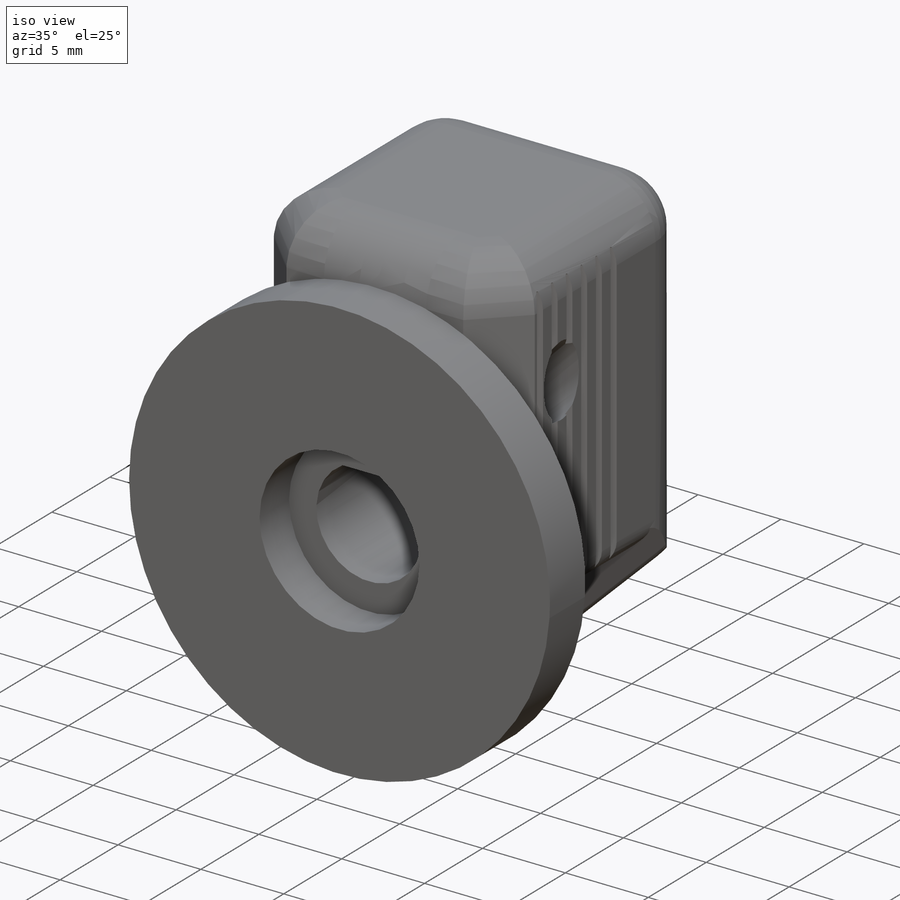
[diagram: iso view]
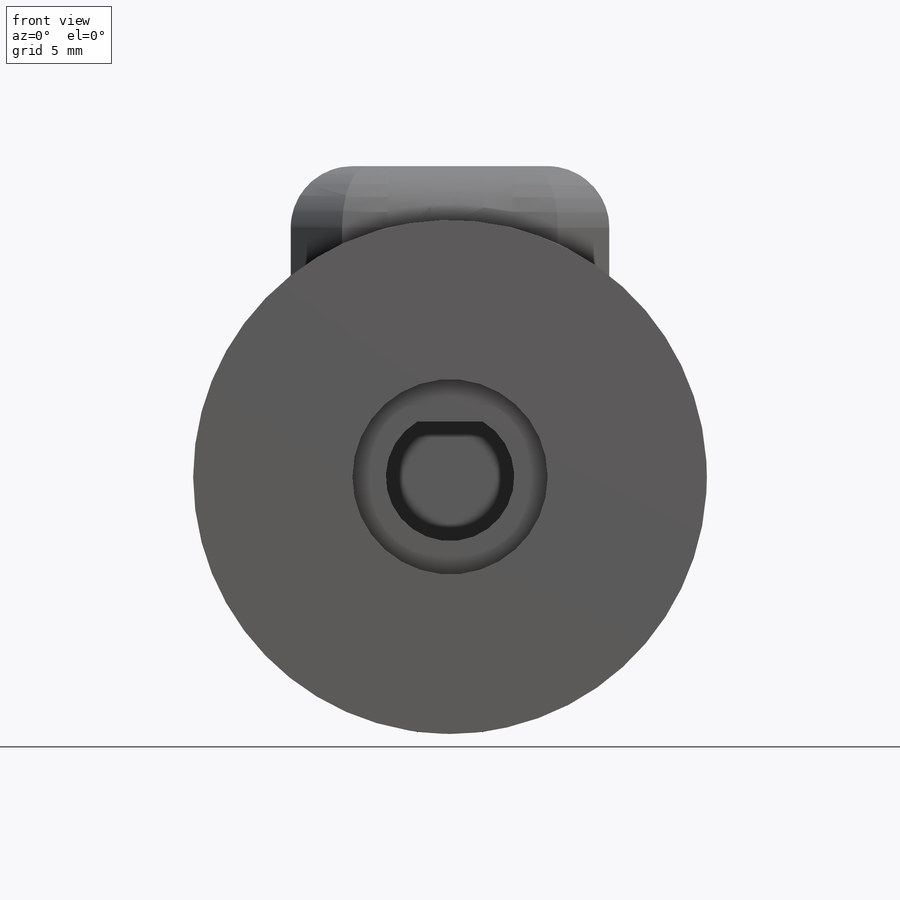
[diagram: front view]
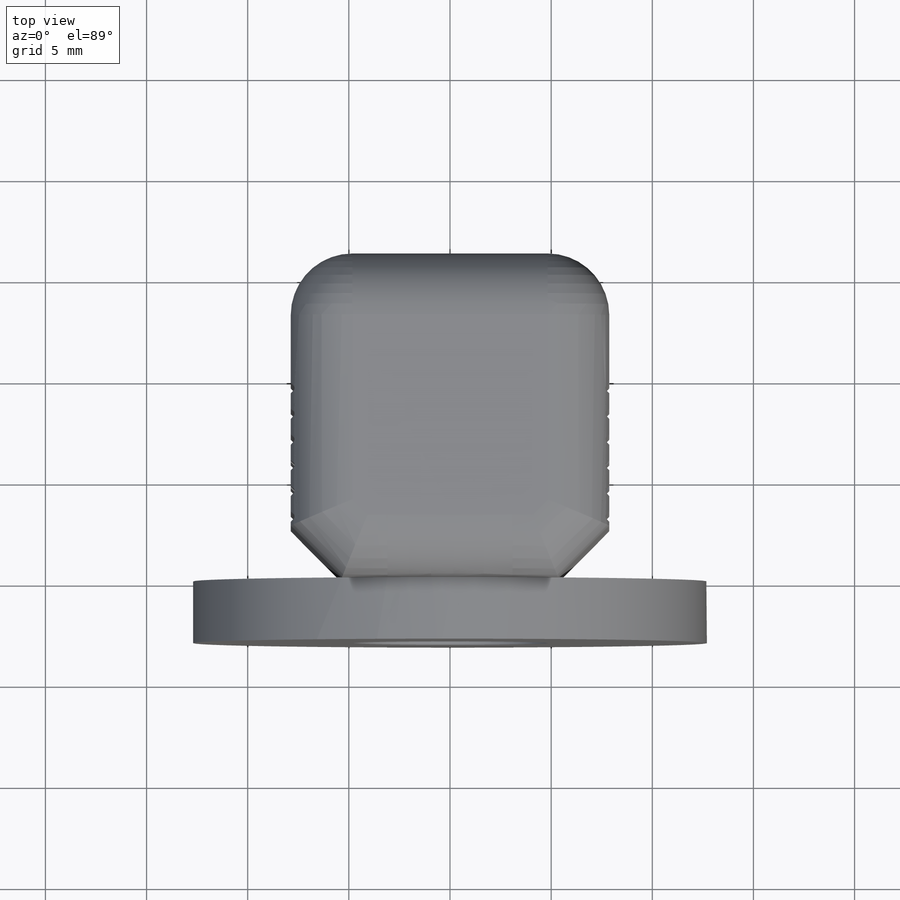
[diagram: top view]
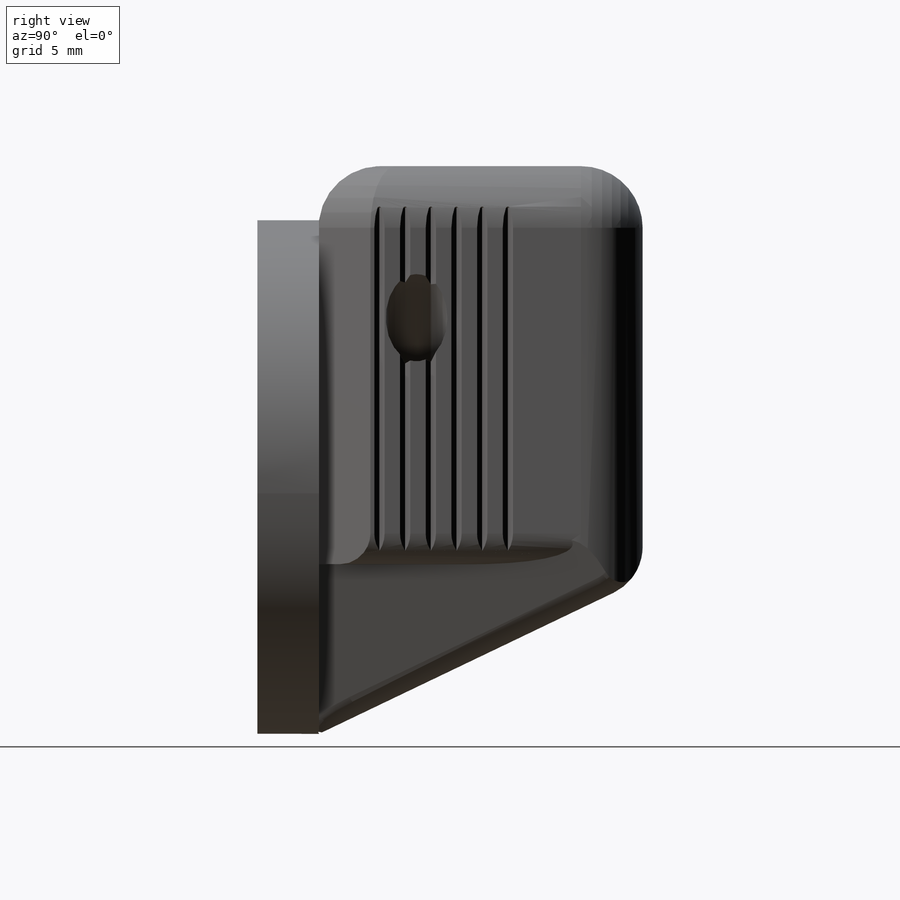
[diagram: right view]
SOLIDWORKS PART (.sldprt)
format: sldprt  version: not decoded by parser v0  size: 752,640 bytes
history: native  units: mm
features: sketch x17, cut_extrude x14, fillet x4, extrude x3, plane x2, mirror x2, material x1, pattern_linear x1 (+11 scaffold rows collapsed)
feature tree (55):
  scaffold x11  (default folders/planes/origin — collapsed)
  material  "PMMA"
  sketch  "Skica2"  dims[D1=25.4mm]
  extrude  "Přidat vysunutím2"  Depth=3.048mm
  sketch  "Skica4"  dims[c1.D3=25.4mm c1.D5=~3.316228mm c1.D1=15.748mm c1.D2=15.748mm c2.D3=15.367mm c2.D4=4.318mm]
  extrude  "Přidat vysunutím4"  Depth=16.002mm
  plane  "Rovina1"  Offset=15.875mm
  sketch  "Skica7"  dims[D1=2.54mm]
  cut_extrude  "Odebrat vysunutím2"  Depth=33.02mm
  sketch  "Skica8"  dims[c1.D1=6.35mm c1.D2=6.35mm c1.D3=6.35mm c2.D1=2.7432mm]
  sketch  "Skica22"  dims[D1=~5.533971mm]
  cut_extrude  "Odebrat vysunutím18"  Depth=2.54mm
  sketch  "Skica23"  dims[D1=1.7907mm]
  extrude  "Přidat vysunutím5"  Depth=16.002mm
  sketch  "Skica26"  dims[D1=0.0mm]
  cut_extrude  "Odebrat vysunutím21"  Depth=15.24mm
  sketch  "Skica27"  dims[D1=0.0mm]
  cut_extrude  "Odebrat vysunutím22"  Depth=15.24mm
  sketch  "Skica28"
  cut_extrude  "Odebrat vysunutím23"  Depth=17.78mm
  fillet  "Zaoblit4"  Radius=3.048mm
  fillet  "Zaoblit8"  Radius=2.54mm
  sketch  "Skica29"  dims[D1=1.5875mm D2=1.5875mm]
  cut_extrude  "Odebrat vysunutím24"  Depth=0.1016mm
  sketch  "Skica30"  dims[D1=0.508mm D2=0.508mm]
  cut_extrude  "Odebrat vysunutím25"  Depth=0.1016mm
  sketch  "Skica31"  dims[D1=3.048mm]
  cut_extrude  "Odebrat vysunutím26"  Depth=0.1016mm
  sketch  "Skica32"
  cut_extrude  "Odebrat vysunutím27"  Depth=0.1016mm
  cut_extrude  "Odebrat vysunutím28"  Depth=15.494mm
  sketch  "Skica33"  dims[D1=0.2032mm D2=0.1016mm]
  cut_extrude  "Odebrat vysunutím31"  Depth=3.175mm
  sketch  "Skica34"
  cut_extrude  "Odebrat vysunutím32"  Depth=1.016mm
  fillet  "Zaoblit13"  Radius=1.524mm
  fillet  "Zaoblit14"  Radius=1.27mm
  sketch  "Skica35"  dims[D1=0.508mm D2=15.113mm]
  cut_extrude  "Odebrat vysunutím33"  Depth=0.254mm
  pattern_linear  "LinPole1"  Count1=6 Count2=1 Spacing1=1.27mm Spacing2=2.54mm
  mirror  "Zrcadlit1"
  plane  "Rovina2"
  sketch  "Skica37"  dims[D1=7.874mm]
  cut_extrude  "Odebrat vysunutím34"  Depth=13.208mm
  mirror  "Zrcadlit2"
decode coverage: 36 of 41 modeling features carry decoded parameters
note: ~ marks probable driven/reference dimensions
note: suppression state not decoded; provenance and decode notes live in map.json
